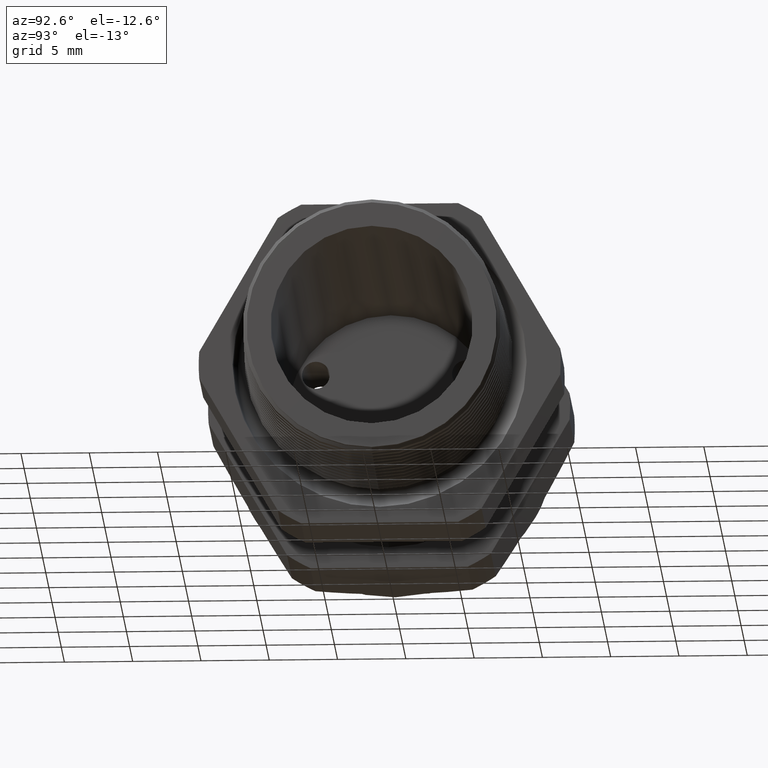
[diagram: clean part render]
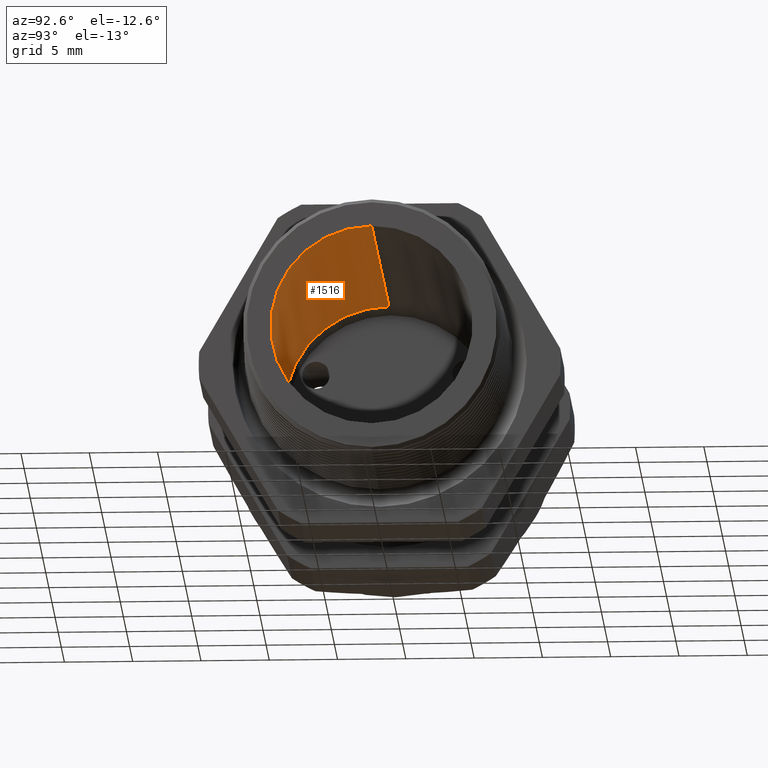
[diagram: same view with one face highlighted and labeled with its STEP entity id]
A machine part, auxiliary view. The second image highlights one B-rep face of the part: STEP entity #1516.
In plain terms, the highlighted conical surface has half-angle 0.446 deg.
Its self-contained STEP definition (entity closure, byte-faithful):
#1516 = ADVANCED_FACE ( 'NONE', ( #4635 ), #4633, .F. ) ;
#1517 = ORIENTED_EDGE ( 'NONE', *, *, #1518, .T. ) ;
#1518 = EDGE_CURVE ( 'NONE', #1519, #1520, #4628, .T. ) ;
#1519 = VERTEX_POINT ( 'NONE', #4624 ) ;
#1520 = VERTEX_POINT ( 'NONE', #4623 ) ;
#1521 = ORIENTED_EDGE ( 'NONE', *, *, #1522, .T. ) ;
#1522 = EDGE_CURVE ( 'NONE', #1520, #1542, #4622, .T. ) ;
#1523 = ORIENTED_EDGE ( 'NONE', *, *, #1541, .F. ) ;
#1524 = ORIENTED_EDGE ( 'NONE', *, *, #1525, .F. ) ;
#1525 = EDGE_CURVE ( 'NONE', #1519, #1539, #4618, .T. ) ;
#1539 = VERTEX_POINT ( 'NONE', #4649 ) ;
#1541 = EDGE_CURVE ( 'NONE', #1539, #1542, #4648, .T. ) ;
#1542 = VERTEX_POINT ( 'NONE', #4643 ) ;
#1543 = EDGE_LOOP ( 'NONE', ( #1517, #1521, #1523, #1524 ) ) ;
#4615 = DIRECTION ( 'NONE',  ( -0.9999697209564802900, 0.0000000000000000000, 0.007781848766137508500 ) ) ;
#4616 = VECTOR ( 'NONE', #4615, 39.37007874015748100 ) ;
#4617 = CARTESIAN_POINT ( 'NONE',  ( -0.9054330708661418900, 0.0000000000000000000, 0.2999999999999999900 ) ) ;
#4618 = LINE ( 'NONE', #4617, #4616 ) ;
#4619 = DIRECTION ( 'NONE',  ( -0.9999697209564802900, 9.530016182899079500E-019, -0.007781848766137508500 ) ) ;
#4620 = VECTOR ( 'NONE', #4619, 39.37007874015748100 ) ;
#4621 = CARTESIAN_POINT ( 'NONE',  ( -0.9054330708661418900, 3.673940397442058900E-017, -0.2999999999999999900 ) ) ;
#4622 = LINE ( 'NONE', #4621, #4620 ) ;
#4623 = CARTESIAN_POINT ( 'NONE',  ( 0.2000000000000000400, 3.621264827203845100E-017, -0.2913974265437366300 ) ) ;
#4624 = CARTESIAN_POINT ( 'NONE',  ( 0.2000000000000000400, 0.0000000000000000000, 0.2913974265437366300 ) ) ;
#4625 = DIRECTION ( 'NONE',  ( 0.0000000000000000000, 0.0000000000000000000, -1.000000000000000000 ) ) ;
#4626 = DIRECTION ( 'NONE',  ( 1.000000000000000000, 0.0000000000000000000, 0.0000000000000000000 ) ) ;
#4627 = AXIS2_PLACEMENT_3D ( 'NONE', #4634, #4626, #4625 ) ;
#4628 = CIRCLE ( 'NONE', #4627, 0.2913974265437366300 ) ;
#4629 = DIRECTION ( 'NONE',  ( 0.0000000000000000000, 0.0000000000000000000, 1.000000000000000000 ) ) ;
#4630 = DIRECTION ( 'NONE',  ( -1.000000000000000000, 0.0000000000000000000, 0.0000000000000000000 ) ) ;
#4631 = CARTESIAN_POINT ( 'NONE',  ( -0.9054330708661418900, 0.0000000000000000000, 0.0000000000000000000 ) ) ;
#4632 = AXIS2_PLACEMENT_3D ( 'NONE', #4631, #4630, #4629 ) ;
#4633 = CONICAL_SURFACE ( 'NONE', #4632, 0.2999999999999999900, 0.007781927309401279900 ) ;
#4634 = CARTESIAN_POINT ( 'NONE',  ( 0.2000000000000000400, 0.0000000000000000000, 0.0000000000000000000 ) ) ;
#4635 = FACE_OUTER_BOUND ( 'NONE', #1543, .T. ) ;
#4643 = CARTESIAN_POINT ( 'NONE',  ( -0.9054330708661418900, 3.673940397442058900E-017, -0.2999999999999999900 ) ) ;
#4644 = DIRECTION ( 'NONE',  ( 0.0000000000000000000, 0.0000000000000000000, -1.000000000000000000 ) ) ;
#4645 = DIRECTION ( 'NONE',  ( 1.000000000000000000, 0.0000000000000000000, 0.0000000000000000000 ) ) ;
#4646 = CARTESIAN_POINT ( 'NONE',  ( -0.9054330708661418900, 0.0000000000000000000, 0.0000000000000000000 ) ) ;
#4647 = AXIS2_PLACEMENT_3D ( 'NONE', #4646, #4645, #4644 ) ;
#4648 = CIRCLE ( 'NONE', #4647, 0.2999999999999999900 ) ;
#4649 = CARTESIAN_POINT ( 'NONE',  ( -0.9054330708661418900, 0.0000000000000000000, 0.2999999999999999900 ) ) ;